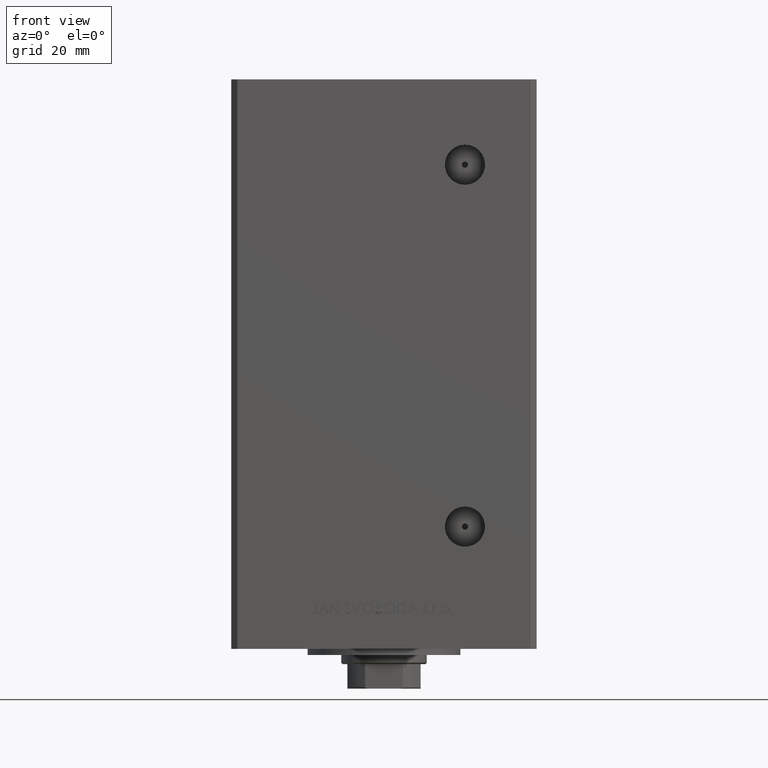
[diagram: clean part render]
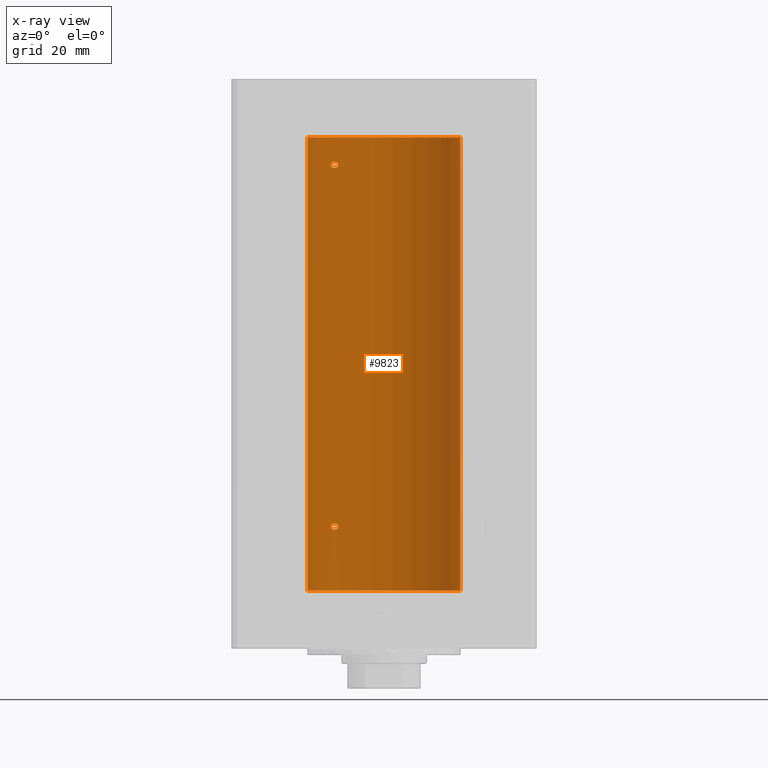
[diagram: x-ray — body ghosted, one internal face saturated and labeled with its STEP entity id]
A machine part, front view, then the same camera in x-ray: the body is ghosted and one INTERNAL B-rep face — a face not visible from any outside direction — is saturated and labeled: STEP entity #9823.
In plain terms, the highlighted cylindrical surface (partial cylindrical patch) has radius 25 mm, axis along (-0, -0, -1).
Its self-contained STEP definition (entity closure, byte-faithful):
#79 = CARTESIAN_POINT ( 'NONE',  ( -15.00000000000002842, 19.99999999999998224, 20.99999999999998934 ) ) ;
#490 = FACE_BOUND ( 'NONE', #32491, .T. ) ;
#1097 = CARTESIAN_POINT ( 'NONE',  ( -16.08745393861402917, 19.13692152169251059, 140.4965015099868992 ) ) ;
#2700 = CARTESIAN_POINT ( 'NONE',  ( -17.34935157289747210, 18.00000000000002132, 139.3289983604257998 ) ) ;
#2988 = EDGE_CURVE ( 'NONE', #30381, #39967, #39615, .T. ) ;
#2990 = CARTESIAN_POINT ( 'NONE',  ( -25.00000000000000000, 0.000000000000000000, 148.5000000000000000 ) ) ;
#3090 = CARTESIAN_POINT ( 'NONE',  ( -15.00000000000002842, 19.99999999999998224, 20.99999999999998934 ) ) ;
#3642 = CARTESIAN_POINT ( 'NONE',  ( -15.01482636753736166, 19.98889854010113254, 20.83120266100769769 ) ) ;
#3959 = CARTESIAN_POINT ( 'NONE',  ( -17.30163983552693452, 18.04615713653364750, 21.33600747272777909 ) ) ;
#4145 = CARTESIAN_POINT ( 'NONE',  ( -15.70664578139654566, 19.45064696206090105, 20.10057959949211082 ) ) ;
#4456 = CARTESIAN_POINT ( 'NONE',  ( -16.72476285461321766, 18.58415905903079945, 21.94494476079569978 ) ) ;
#6287 = CARTESIAN_POINT ( 'NONE',  ( -15.23594348686703448, 19.82115246225713179, 21.58872193268582151 ) ) ;
#7202 = EDGE_LOOP ( 'NONE', ( #25676, #11484, #10717, #23110 ) ) ;
#7321 = LINE ( 'NONE', #37047, #46732 ) ;
#7956 = CARTESIAN_POINT ( 'NONE',  ( -15.58164749401203686, 19.55082150006403907, 20.15667807268518885 ) ) ;
#8213 = CARTESIAN_POINT ( 'NONE',  ( -16.34293146994555812, 18.91921593628406129, 19.99734259067261277 ) ) ;
#8222 = CARTESIAN_POINT ( 'NONE',  ( -15.00000000000018474, 20.00000000000002487, 139.5840388036241393 ) ) ;
#8281 = CARTESIAN_POINT ( 'NONE',  ( -17.05007833789895955, 18.28384926940283606, 21.70137399901213371 ) ) ;
#8526 = CARTESIAN_POINT ( 'NONE',  ( -15.95796937689564565, 19.24499537862563869, 21.97577309965217651 ) ) ;
#9267 = DIRECTION ( 'NONE',  ( -0.000000000000000000, 0.000000000000000000, 1.000000000000000000 ) ) ;
#9823 = ADVANCED_FACE ( 'NONE', ( #17030, #43385, #490 ), #39332, .F. ) ;
#9846 = CARTESIAN_POINT ( 'NONE',  ( -17.30269557861141294, 18.04515136187502478, 139.1660420817557053 ) ) ;
#10270 = CIRCLE ( 'NONE', #11885, 25.00000000000000000 ) ;
#10362 = CARTESIAN_POINT ( 'NONE',  ( -15.58230678163764260, 19.55030131031895380, 21.84373948670293331 ) ) ;
#10431 = EDGE_CURVE ( 'NONE', #36004, #27322, #23188, .T. ) ;
#10615 = VERTEX_POINT ( 'NONE', #10765 ) ;
#10717 = ORIENTED_EDGE ( 'NONE', *, *, #13569, .T. ) ;
#10765 = CARTESIAN_POINT ( 'NONE',  ( -25.00000000000000000, 0.000000000000000000, 0.000000000000000000 ) ) ;
#11277 = CARTESIAN_POINT ( 'NONE',  ( -17.34935157289810093, 17.99999999999978328, 21.00000000000008882 ) ) ;
#11484 = ORIENTED_EDGE ( 'NONE', *, *, #10431, .T. ) ;
#11529 = CARTESIAN_POINT ( 'NONE',  ( -16.83415218046515349, 18.48332662461723785, 20.13431726628115115 ) ) ;
#11840 = CARTESIAN_POINT ( 'NONE',  ( -17.34935157289810093, 17.99999999999978328, 21.00000000000008882 ) ) ;
#11885 = AXIS2_PLACEMENT_3D ( 'NONE', #37730, #41543, #21539 ) ;
#12022 = CARTESIAN_POINT ( 'NONE',  ( -15.06722189748651175, 19.94943357555936458, 20.67598032487887849 ) ) ;
#12281 = EDGE_CURVE ( 'NONE', #39967, #30381, #49342, .T. ) ;
#12788 = CARTESIAN_POINT ( 'NONE',  ( -17.05007833789892047, 18.28384926940287869, 140.2013739990121621 ) ) ;
#13142 = DIRECTION ( 'NONE',  ( -0.000000000000000000, -0.000000000000000000, -1.000000000000000000 ) ) ;
#13333 = DIRECTION ( 'NONE',  ( 1.000000000000000000, 0.000000000000000000, 0.000000000000000000 ) ) ;
#13569 = EDGE_CURVE ( 'NONE', #27322, #10615, #20769, .T. ) ;
#13912 = CARTESIAN_POINT ( 'NONE',  ( -17.05249165747618534, 18.28208333366438509, 138.7922192200364009 ) ) ;
#14648 = CARTESIAN_POINT ( 'NONE',  ( -15.95808436639360117, 19.24489366819300784, 138.5242608788495602 ) ) ;
#14996 = ORIENTED_EDGE ( 'NONE', *, *, #2988, .F. ) ;
#15093 = CARTESIAN_POINT ( 'NONE',  ( -16.08757264251635277, 19.13682698743030386, 20.00344276584819525 ) ) ;
#15757 = CARTESIAN_POINT ( 'NONE',  ( -17.34935157289806185, 17.99999999999981526, 139.5000000000000853 ) ) ;
#16365 = CARTESIAN_POINT ( 'NONE',  ( -15.01476641895662567, 19.98894406010707314, 139.6687945634013204 ) ) ;
#16611 = CARTESIAN_POINT ( 'NONE',  ( -16.46913072925702792, 18.81168496547891777, 140.5057775588114168 ) ) ;
#17030 = FACE_OUTER_BOUND ( 'NONE', #7202, .T. ) ;
#17195 = CARTESIAN_POINT ( 'NONE',  ( 25.00000000000000000, 3.061616997868383043E-15, 148.5000000000000000 ) ) ;
#17464 = CARTESIAN_POINT ( 'NONE',  ( -15.34666241858318259, 19.73581294411415854, 138.8121224605375517 ) ) ;
#17970 = CARTESIAN_POINT ( 'NONE',  ( -17.34935157289806185, 17.99999999999981526, 139.5000000000000853 ) ) ;
#18121 = CARTESIAN_POINT ( 'NONE',  ( -17.34935157289746854, 18.00000000000001421, 139.6709736906063029 ) ) ;
#18372 = EDGE_CURVE ( 'NONE', #48936, #21935, #42972, .T. ) ;
#18908 = CARTESIAN_POINT ( 'NONE',  ( -17.05249165747622442, 18.28208333366434601, 20.29221922003641509 ) ) ;
#19971 = CARTESIAN_POINT ( 'NONE',  ( -16.99843849356152248, 18.33190197607051886, 21.74683351457564839 ) ) ;
#20362 = ORIENTED_EDGE ( 'NONE', *, *, #12281, .F. ) ;
#20428 = CARTESIAN_POINT ( 'NONE',  ( -15.34624284195505162, 19.73614442075940190, 140.1876185318512853 ) ) ;
#20769 = LINE ( 'NONE', #28118, #30310 ) ;
#20965 = CARTESIAN_POINT ( 'NONE',  ( 0.000000000000000000, 0.000000000000000000, 148.5000000000000000 ) ) ;
#21539 = DIRECTION ( 'NONE',  ( 1.000000000000000000, 0.000000000000000000, 0.000000000000000000 ) ) ;
#21794 = CARTESIAN_POINT ( 'NONE',  ( -15.34624284195510135, 19.73614442075936992, 21.68761853185130306 ) ) ;
#21818 = EDGE_CURVE ( 'NONE', #36004, #42425, #7321, .T. ) ;
#21935 = VERTEX_POINT ( 'NONE', #38038 ) ;
#22574 = DIRECTION ( 'NONE',  ( -0.000000000000000000, -0.000000000000000000, -1.000000000000000000 ) ) ;
#22968 = CARTESIAN_POINT ( 'NONE',  ( -16.71492528194906768, 18.59135325782697734, 20.08014155834204217 ) ) ;
#23110 = ORIENTED_EDGE ( 'NONE', *, *, #24908, .F. ) ;
#23188 = CIRCLE ( 'NONE', #25622, 25.00000000000000000 ) ;
#23460 = CARTESIAN_POINT ( 'NONE',  ( -15.95808436639362782, 19.24489366819297942, 20.02426087884952821 ) ) ;
#23721 = CARTESIAN_POINT ( 'NONE',  ( -15.06763582406798818, 19.94912143246363811, 139.8250699387717475 ) ) ;
#23774 = CARTESIAN_POINT ( 'NONE',  ( -15.70535969280557254, 19.45169171760800708, 21.89896077211249192 ) ) ;
#24129 = DIRECTION ( 'NONE',  ( -1.000000000000000000, 0.000000000000000000, 0.000000000000000000 ) ) ;
#24222 = CARTESIAN_POINT ( 'NONE',  ( -15.70535969280552280, 19.45169171760802485, 140.3989607721124457 ) ) ;
#24908 = EDGE_CURVE ( 'NONE', #42425, #10615, #10270, .T. ) ;
#25330 = CARTESIAN_POINT ( 'NONE',  ( -15.06722189748648866, 19.94943357555938590, 139.1759803248788785 ) ) ;
#25577 = CARTESIAN_POINT ( 'NONE',  ( -15.01482636753733146, 19.98889854010115741, 139.3312026610076941 ) ) ;
#25622 = AXIS2_PLACEMENT_3D ( 'NONE', #20965, #9267, #13333 ) ;
#25676 = ORIENTED_EDGE ( 'NONE', *, *, #21818, .F. ) ;
#25826 = CARTESIAN_POINT ( 'NONE',  ( -17.15234217094406333, 18.18812579706696653, 138.8965730437749926 ) ) ;
#25943 = CARTESIAN_POINT ( 'NONE',  ( 25.00000000000000000, 3.061616997868383043E-15, 0.000000000000000000 ) ) ;
#27322 = VERTEX_POINT ( 'NONE', #2990 ) ;
#28024 = CARTESIAN_POINT ( 'NONE',  ( -15.23594348686699185, 19.82115246225716021, 140.0887219326858144 ) ) ;
#28118 = CARTESIAN_POINT ( 'NONE',  ( -25.00000000000000000, 0.000000000000000000, 148.5000000000000000 ) ) ;
#28280 = CARTESIAN_POINT ( 'NONE',  ( -17.14593038898727428, 18.19399314418736324, 140.0959448831964949 ) ) ;
#28874 = AXIS2_PLACEMENT_3D ( 'NONE', #47705, #32240, #24129 ) ;
#29129 = CARTESIAN_POINT ( 'NONE',  ( -15.10490010356605595, 19.92096840819819903, 139.1037666713224610 ) ) ;
#29387 = CARTESIAN_POINT ( 'NONE',  ( -16.46844752485324648, 18.81003400474354947, 138.5115443190389044 ) ) ;
#29406 = CARTESIAN_POINT ( 'NONE',  ( -15.01476641895664876, 19.98894406010705183, 21.16879456340133459 ) ) ;
#29884 = CARTESIAN_POINT ( 'NONE',  ( -14.99999999999999112, 20.00000000000000711, 139.4999999999999716 ) ) ;
#30310 = VECTOR ( 'NONE', #13142, 1000.000000000000000 ) ;
#30381 = VERTEX_POINT ( 'NONE', #3090 ) ;
#30584 = CARTESIAN_POINT ( 'NONE',  ( -15.34666241858321634, 19.73581294411414078, 20.31212246053760495 ) ) ;
#30664 = EDGE_LOOP ( 'NONE', ( #20362, #14996 ) ) ;
#31573 = CARTESIAN_POINT ( 'NONE',  ( -15.00000000000022027, 20.00000000000000355, 20.91594745860243165 ) ) ;
#31638 = CARTESIAN_POINT ( 'NONE',  ( -17.14593038898733113, 18.19399314418732061, 21.59594488319649130 ) ) ;
#32087 = CARTESIAN_POINT ( 'NONE',  ( -16.72476285461317502, 18.58415905903083498, 140.4449447607956927 ) ) ;
#32240 = DIRECTION ( 'NONE',  ( -0.000000000000000000, -0.000000000000000000, -1.000000000000000000 ) ) ;
#32491 = EDGE_LOOP ( 'NONE', ( #41593, #34686 ) ) ;
#33681 = CARTESIAN_POINT ( 'NONE',  ( -16.34293146994552259, 18.91921593628409681, 138.4973425906726163 ) ) ;
#34194 = CARTESIAN_POINT ( 'NONE',  ( -15.00000000000021316, 19.99999999999998934, 21.08403880362416061 ) ) ;
#34434 = CARTESIAN_POINT ( 'NONE',  ( -15.00000000000002842, 19.99999999999998224, 20.99999999999998934 ) ) ;
#34686 = ORIENTED_EDGE ( 'NONE', *, *, #37700, .F. ) ;
#35112 = CARTESIAN_POINT ( 'NONE',  ( -17.15234217094410596, 18.18812579706693100, 20.39657304377494640 ) ) ;
#35625 = CARTESIAN_POINT ( 'NONE',  ( -14.99999999999999112, 20.00000000000000711, 139.4999999999999716 ) ) ;
#35882 = CARTESIAN_POINT ( 'NONE',  ( -15.95796937689560480, 19.24499537862567422, 140.4757730996521730 ) ) ;
#36004 = VERTEX_POINT ( 'NONE', #17195 ) ;
#36979 = CARTESIAN_POINT ( 'NONE',  ( -16.83415218046510731, 18.48332662461726983, 138.6343172662811298 ) ) ;
#37047 = CARTESIAN_POINT ( 'NONE',  ( 25.00000000000000000, 3.061616997868383043E-15, 148.5000000000000000 ) ) ;
#37228 = CARTESIAN_POINT ( 'NONE',  ( -15.70664578139651546, 19.45064696206092947, 138.6005795994921073 ) ) ;
#37700 = EDGE_CURVE ( 'NONE', #21935, #48936, #40566, .T. ) ;
#37730 = CARTESIAN_POINT ( 'NONE',  ( 0.000000000000000000, 0.000000000000000000, 0.000000000000000000 ) ) ;
#38038 = CARTESIAN_POINT ( 'NONE',  ( -14.99999999999999112, 20.00000000000000711, 139.4999999999999716 ) ) ;
#38422 = CARTESIAN_POINT ( 'NONE',  ( -15.10490010356607904, 19.92096840819818127, 20.60376667132250716 ) ) ;
#38489 = CARTESIAN_POINT ( 'NONE',  ( -16.08745393861406825, 19.13692152169247507, 21.99650150998692766 ) ) ;
#38676 = CARTESIAN_POINT ( 'NONE',  ( -17.30269557861145202, 18.04515136187498570, 20.66604208175573376 ) ) ;
#38923 = CARTESIAN_POINT ( 'NONE',  ( -16.46844752485328911, 18.81003400474351039, 20.01154431903891862 ) ) ;
#38992 = CARTESIAN_POINT ( 'NONE',  ( -16.46913072925707056, 18.81168496547888580, 22.00577755881141329 ) ) ;
#39332 = CYLINDRICAL_SURFACE ( 'NONE', #28874, 25.00000000000000000 ) ;
#39615 = B_SPLINE_CURVE_WITH_KNOTS ( 'NONE', 3,
 ( #34434, #34194, #29406, #44862, #41066, #6287, #21794, #10362, #23774, #8526, #38489, #38992, #4456, #19971, #8281, #31638, #50171, #3959, #46356, #11840 ),
 .UNSPECIFIED., .F., .F.,
 ( 4, 2, 2, 2, 2, 2, 2, 2, 2, 4 ),
 ( 0.004032696862986568168, 0.004284699222246932983, 0.004536701581507298665, 0.005040706300028030031, 0.005544711018548761396, 0.006048715737069493628, 0.007056725174110963297, 0.007308727533371326378, 0.007560729892631690326, 0.008064734611152429497 ),
 .UNSPECIFIED. ) ;
#39967 = VERTEX_POINT ( 'NONE', #40082 ) ;
#40082 = CARTESIAN_POINT ( 'NONE',  ( -17.34935157289810093, 17.99999999999978328, 21.00000000000008882 ) ) ;
#40192 = CARTESIAN_POINT ( 'NONE',  ( -17.34935157289806185, 17.99999999999981526, 139.5000000000000853 ) ) ;
#40566 = B_SPLINE_CURVE_WITH_KNOTS ( 'NONE', 3,
 ( #35625, #8222, #16365, #23721, #47295, #28024, #20428, #43482, #24222, #35882, #1097, #16611, #32087, #47551, #12788, #28280, #43740, #48307, #18121, #40192 ),
 .UNSPECIFIED., .F., .F.,
 ( 4, 2, 2, 2, 2, 2, 2, 2, 2, 4 ),
 ( 0.004032696862986557759, 0.004284699222246954667, 0.004536701581507351574, 0.005040706300028082940, 0.005544711018548810835, 0.006048715737069539598, 0.007056725174110996257, 0.007308727533371349797, 0.007560729892631701601, 0.008064734611152412150 ),
 .UNSPECIFIED. ) ;
#40790 = CARTESIAN_POINT ( 'NONE',  ( -15.00000000000018119, 20.00000000000001421, 139.4159474586024032 ) ) ;
#41042 = CARTESIAN_POINT ( 'NONE',  ( -16.08757264251632080, 19.13682698743034649, 138.5034427658481775 ) ) ;
#41066 = CARTESIAN_POINT ( 'NONE',  ( -15.10490800566739011, 19.92096305044238491, 21.39629317404425279 ) ) ;
#41534 = CARTESIAN_POINT ( 'NONE',  ( -15.58164749401199956, 19.55082150006405328, 138.6566780726851675 ) ) ;
#41543 = DIRECTION ( 'NONE',  ( -0.000000000000000000, 0.000000000000000000, 1.000000000000000000 ) ) ;
#41593 = ORIENTED_EDGE ( 'NONE', *, *, #18372, .F. ) ;
#42425 = VERTEX_POINT ( 'NONE', #25943 ) ;
#42724 = CARTESIAN_POINT ( 'NONE',  ( -17.34935157289749696, 17.99999999999998579, 20.82899836042580688 ) ) ;
#42972 = B_SPLINE_CURVE_WITH_KNOTS ( 'NONE', 3,
 ( #17970, #2700, #9846, #25826, #13912, #36979, #49148, #29387, #33681, #41042, #14648, #37228, #41534, #17464, #48403, #29129, #25330, #25577, #40790, #29884 ),
 .UNSPECIFIED., .F., .F.,
 ( 4, 2, 2, 2, 2, 2, 2, 2, 2, 4 ),
 ( 2.254873622441466949E-16, 0.0005040871078735091300, 0.001008174215746792746, 0.001512261323620076470, 0.002016348431493359978, 0.002520435539366643485, 0.003024522647239927427, 0.003528609755113210501, 0.003780653309049884347, 0.004032696862986557759 ),
 .UNSPECIFIED. ) ;
#43385 = FACE_BOUND ( 'NONE', #30664, .T. ) ;
#43482 = CARTESIAN_POINT ( 'NONE',  ( -15.58230678163759642, 19.55030131031898577, 140.3437394867029582 ) ) ;
#43740 = CARTESIAN_POINT ( 'NONE',  ( -17.19010376497220705, 18.15221652163111088, 140.0356701235680248 ) ) ;
#44862 = CARTESIAN_POINT ( 'NONE',  ( -15.06763582406801483, 19.94912143246361325, 21.32506993877174395 ) ) ;
#46356 = CARTESIAN_POINT ( 'NONE',  ( -17.34935157289749696, 17.99999999999998224, 21.17097369060632417 ) ) ;
#46732 = VECTOR ( 'NONE', #22574, 1000.000000000000000 ) ;
#47034 = CARTESIAN_POINT ( 'NONE',  ( -15.23538646979301170, 19.82157806413531631, 20.41199989528276149 ) ) ;
#47295 = CARTESIAN_POINT ( 'NONE',  ( -15.10490800566735103, 19.92096305044241689, 139.8962931740442173 ) ) ;
#47551 = CARTESIAN_POINT ( 'NONE',  ( -16.99843849356149050, 18.33190197607055794, 140.2468335145756839 ) ) ;
#47705 = CARTESIAN_POINT ( 'NONE',  ( 0.000000000000000000, 0.000000000000000000, 148.5000000000000000 ) ) ;
#48307 = CARTESIAN_POINT ( 'NONE',  ( -17.30163983552688833, 18.04615713653367948, 139.8360074727277720 ) ) ;
#48403 = CARTESIAN_POINT ( 'NONE',  ( -15.23538646979298505, 19.82157806413532697, 138.9119998952827757 ) ) ;
#48936 = VERTEX_POINT ( 'NONE', #15757 ) ;
#49148 = CARTESIAN_POINT ( 'NONE',  ( -16.71492528194901794, 18.59135325782701642, 138.5801415583420351 ) ) ;
#49342 = B_SPLINE_CURVE_WITH_KNOTS ( 'NONE', 3,
 ( #11277, #42724, #38676, #35112, #18908, #11529, #22968, #38923, #8213, #15093, #23460, #4145, #7956, #30584, #47034, #38422, #12022, #3642, #31573, #79 ),
 .UNSPECIFIED., .F., .F.,
 ( 4, 2, 2, 2, 2, 2, 2, 2, 2, 4 ),
 ( 2.011680962688586771E-16, 0.0005040871078734975291, 0.001008174215746794047, 0.001512261323620090565, 0.002016348431493386866, 0.002520435539366683384, 0.003024522647239979902, 0.003528609755113272951, 0.003780653309049920342, 0.004032696862986568168 ),
 .UNSPECIFIED. ) ;
#50171 = CARTESIAN_POINT ( 'NONE',  ( -17.19010376497224968, 18.15221652163108601, 21.53567012356800703 ) ) ;